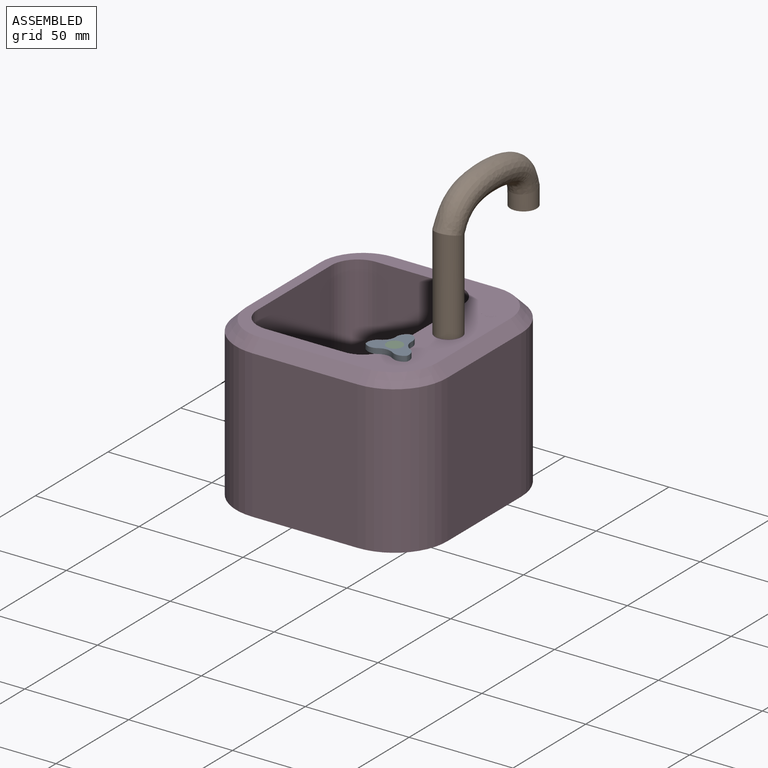
[diagram: assembled view]
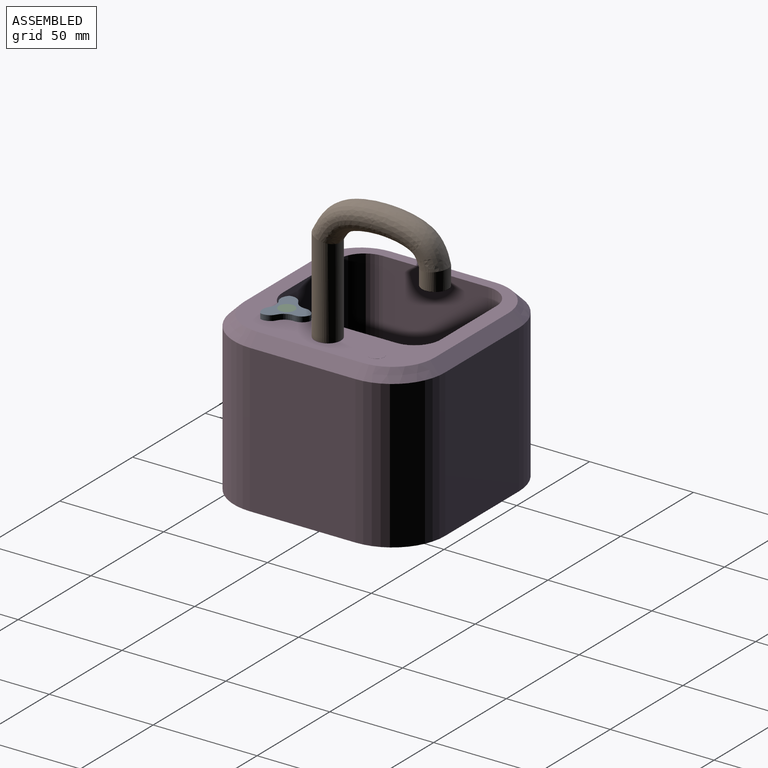
[diagram: assembled view, second angle]
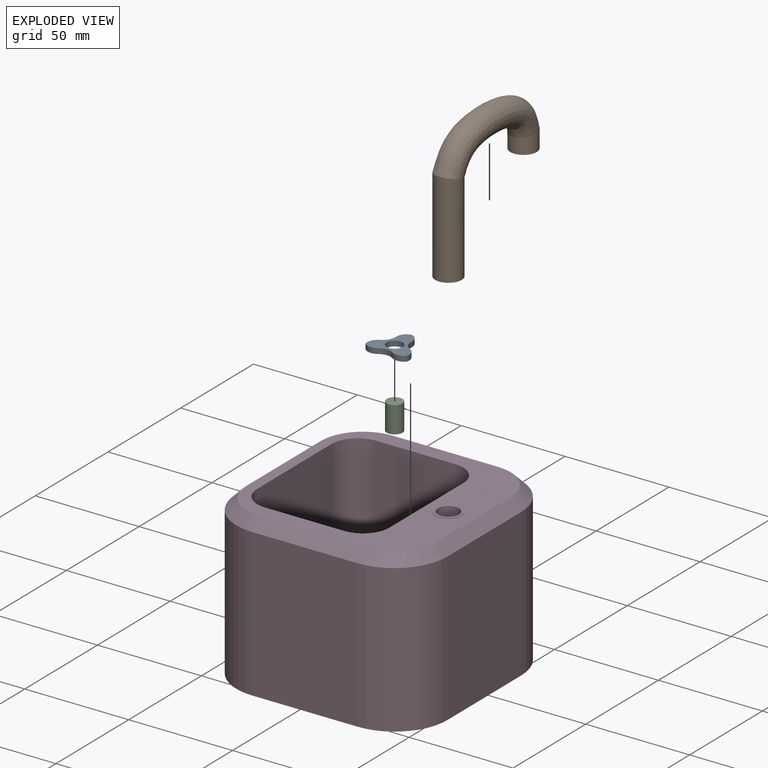
[diagram: exploded view]
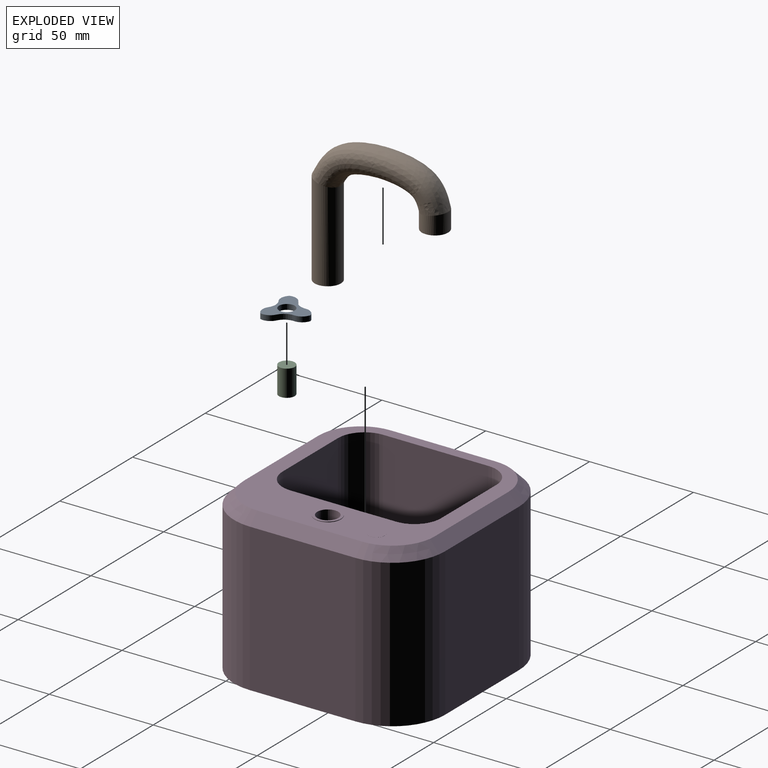
[diagram: exploded view, second angle]
ASSEMBLY  parts=4 mates=3
PART A: 12 faces, bbox 20.3x18.8x2.5 mm
  f0: cylinder r=6.35mm len=7mm, axis (0,0,-1), area 18.8mm2, adj f4,f5,f7,f10
  f1: cylinder r=6.35mm len=6.09mm, axis (0,0,-1), area 18.8mm2, adj f4,f5,f6,f9
  f2: cylinder r=6.35mm len=6.01mm, axis (0,0,-1), area 18.8mm2, adj f4,f5,f8,f11
  f3: cylinder r=3.81mm len=7.62mm, axis (0,0,-1), area 60.8mm2, adj f4,f5
  f4: plane 20.33x18.78mm, normal (0,0,1), area 170.9mm2, adj f0,f1,f2,f3,f6,f7,f8,f9
  f5: plane 20.33x18.78mm, normal (0,0,-1), area 170.9mm2, adj f0,f1,f2,f3,f6,f7,f8,f9
  f6: cylinder r=5.08mm len=5.92mm, axis (0,0,1), area 17.8mm2, adj f1,f4,f5,f7
  f7: cylinder r=5.08mm len=6.42mm, axis (0,0,1), area 17.8mm2, adj f0,f4,f5,f6
  f8: cylinder r=5.08mm len=5.17mm, axis (0,0,1), area 17.8mm2, adj f2,f4,f5,f9
  f9: cylinder r=5.08mm len=5.25mm, axis (0,0,1), area 17.8mm2, adj f1,f4,f5,f8
  f10: cylinder r=5.08mm len=6.51mm, axis (0,0,1), area 18.1mm2, adj f0,f4,f5,f11
  f11: cylinder r=5.08mm len=5.99mm, axis (0,0,1), area 18.1mm2, adj f2,f4,f5,f10
PART B: 8 faces, bbox 64.3x12.7x64.3 mm
  f0: cylinder r=5.08mm len=10.16mm, axis (0,0,-1), area 265.4mm2, adj f1,f3
  f1: bspline ~61.76x22.41mm, area 2046.6mm2, adj f0,f2
  f2: cylinder r=5.08mm len=45.32mm, axis (0,0,1), area 1416.4mm2, adj f1,f4
  f3: plane 12.7x12.7mm, normal (0,0,-1), area 45.6mm2, adj f0,f5
  f4: plane 12.7x12.7mm, normal (0,0,-1), area 45.6mm2, adj f2,f7
  f5: cylinder r=6.35mm len=12.7mm, axis (0,0,-1), area 333.5mm2, adj f3,f6
  f6: bspline ~64.29x24.54mm, area 2562.3mm2, adj f5,f7
  f7: cylinder r=6.35mm len=45.63mm, axis (0,0,1), area 1773.6mm2, adj f4,f6
PART C: 3 faces, bbox 7.6x7.6x12.7 mm
  f0: cylinder r=3.81mm len=12.7mm, axis (0,0,-1), area 304mm2, adj f1,f2
  f1: plane 7.62x7.62mm, normal (0,0,1), area 45.6mm2, adj f0
  f2: plane 7.62x7.62mm, normal (0,0,-1), area 45.6mm2, adj f0
PART D: 34 faces, bbox 101.6x101.6x76.5 mm
  f0: plane 71.12x50.8mm, normal (0,-1,0), area 3612.9mm2, adj f5,f6,f9,f14
  f1: plane 71.12x50.8mm, normal (1,0,0), area 3612.9mm2, adj f5,f6,f7,f17
  f2: plane 71.12x50.8mm, normal (0,1,0), area 3612.9mm2, adj f5,f7,f8,f13
  f3: plane 71.12x50.8mm, normal (-1,0,0), area 3612.9mm2, adj f5,f8,f9,f10
  f4: plane 91.44x91.44mm, normal (0,0,1), area 3134.3mm2, adj f10,f11,f12,f13,f14,f15,f16,f17
  f5: plane 101.6x101.6mm, normal (0,0,-1), area 9583.6mm2, adj f0,f1,f2,f3,f6,f7,f8,f9
  f6: cylinder r=25.4mm len=71.12mm, axis (0,0,-1), area 2837.6mm2, adj f0,f1,f5,f16
  f7: cylinder r=25.4mm len=71.12mm, axis (0,0,1), area 2837.6mm2, adj f1,f2,f5,f15
  f8: cylinder r=25.4mm len=71.12mm, axis (0,0,-1), area 2837.6mm2, adj f2,f3,f5,f11
  f9: cylinder r=25.4mm len=71.12mm, axis (0,0,1), area 2837.6mm2, adj f0,f3,f5,f12
  f10: plane 50.8x5.08mm, normal (-0.71,0,0.71), area 365mm2, adj f3,f4,f11,f12
  f11: cone r=20.32mm half-angle=45deg, axis (0,0,-1), area 258mm2, adj f4,f8,f10,f13
  f12: cone r=20.32mm half-angle=45deg, axis (0,0,-1), area 258mm2, adj f4,f9,f10,f14
  f13: plane 50.8x5.08mm, normal (0,0.71,0.71), area 365mm2, adj f2,f4,f11,f15
  f14: plane 50.8x5.08mm, normal (0,-0.71,0.71), area 365mm2, adj f0,f4,f12,f16
  f15: cone r=20.32mm half-angle=45deg, axis (0,0,-1), area 258mm2, adj f4,f7,f13,f17
  f16: cone r=20.32mm half-angle=45deg, axis (0,0,-1), area 258mm2, adj f4,f6,f14,f17
  f17: plane 50.8x5.08mm, normal (0.71,0,0.71), area 365mm2, adj f1,f4,f15,f16
  f18: cylinder r=12.7mm len=73.66mm, axis (0,0,1), area 1469.5mm2, adj f4,f19,f25,f26
  f19: plane 73.66x38.1mm, normal (0,1,0), area 2806.4mm2, adj f4,f18,f20,f26
  f20: cylinder r=12.7mm len=73.66mm, axis (0,0,1), area 1469.5mm2, adj f4,f19,f21,f26
  f21: plane 73.66x50.8mm, normal (-1,0,0), area 3741.9mm2, adj f4,f20,f22,f26
  f22: cylinder r=12.7mm len=73.66mm, axis (0,0,1), area 1469.5mm2, adj f4,f21,f23,f26
  f23: plane 73.66x38.1mm, normal (0,-1,0), area 2806.4mm2, adj f4,f22,f24,f26
  f24: cylinder r=12.7mm len=73.66mm, axis (0,0,1), area 1469.5mm2, adj f4,f23,f25,f26
  f25: plane 73.66x50.8mm, normal (1,0,0), area 3741.9mm2, adj f4,f18,f24,f26
  f26: plane 76.2x63.5mm, normal (0,0,1), area 4515.1mm2, adj f18,f19,f20,f21,f22,f23,f24,f25
  f27: cylinder r=7.68mm len=15.35mm, axis (0,0,1), area 122.5mm2, adj f5,f26
  f28: cylinder r=6.35mm len=12.7mm, axis (0,0,-1), area 10.1mm2, adj f4,f29
  f29: plane 12.7x12.7mm, normal (0,0,1), area 45.6mm2, adj f28,f30
  f30: cylinder r=5.08mm len=76.2mm, axis (0,0,1), area 2432.2mm2, adj f29,f31
  f31: plane 10.16x10.16mm, normal (0,0,1), area 81.1mm2, adj f30
  f32: cylinder r=3.81mm len=7.62mm, axis (0,0,-1), area 0.6mm2, adj f4,f33
  f33: plane 7.62x7.62mm, normal (0,0,1), area 45.6mm2, adj f32
PLACE A t=(81.52,-33.58,-27.57)mm
PLACE B rot(axis=(0,0,-1),90deg) t=(89.65,-8.18,-14.62)mm
PLACE C t=(81.52,-33.58,-25.03)mm
PLACE D t=(56.12,-8.18,-91.07)mm
MATE fastened C.f0 <-> A.f3  axis (0,0,1) through (81.52,-33.58,-12.33)mm
MATE revolute D.f6 <-> A.f3  axis (0,0,1) through (81.52,-33.58,-14.87)mm
MATE revolute B.f2 <-> D.f28  axis (0,0,1) through (89.65,-8.18,-14.62)mm
